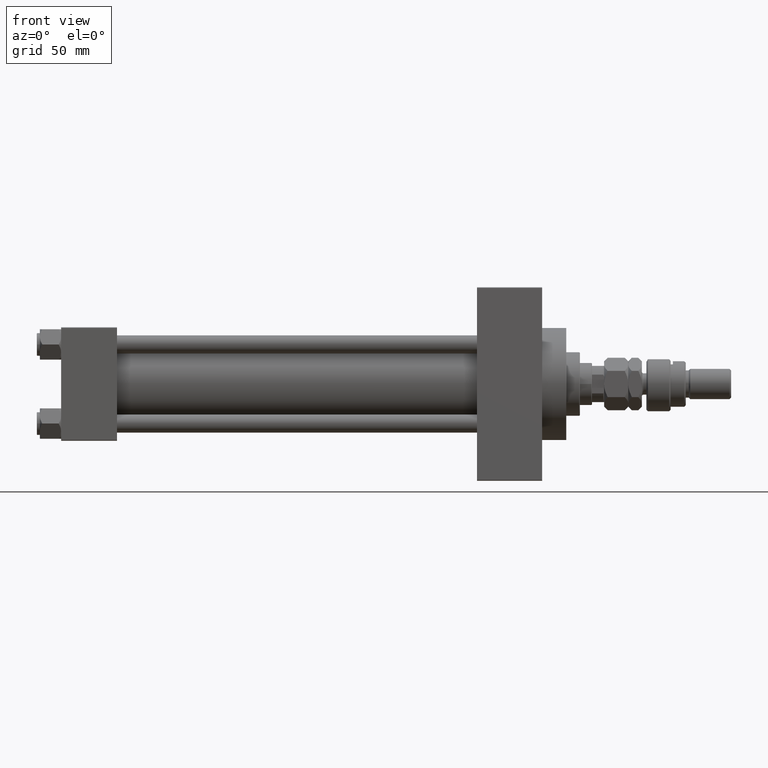
[diagram: clean part render]
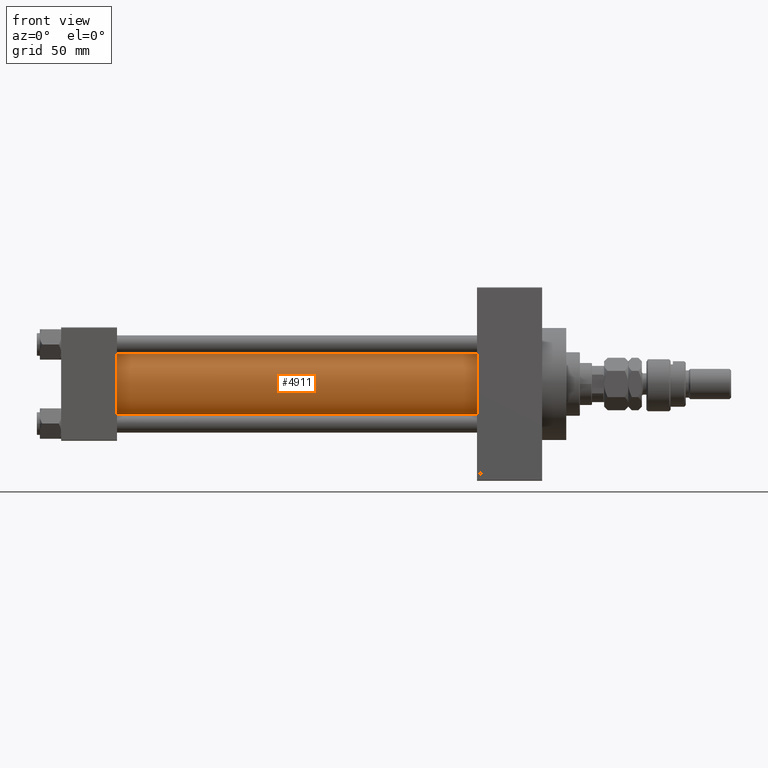
[diagram: same view with one face highlighted and labeled with its STEP entity id]
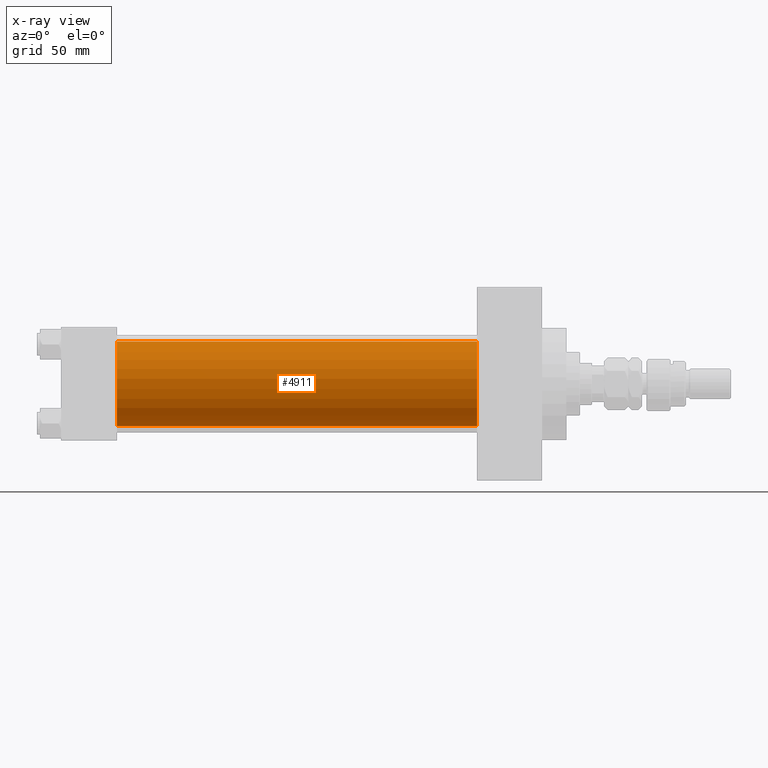
[diagram: x-ray of the same camera — body ghosted, the highlighted face saturated]
A machine part, front view. The second image highlights one B-rep face of the part: STEP entity #4911.
The next image is the same camera in x-ray: the body ghosted, the highlighted face saturated — about 0% of this face is hidden behind the body in this view.
In plain terms, the highlighted cylindrical surface (partial cylindrical patch) has radius 28 mm, axis along (-1, -0, -0).
Its self-contained STEP definition (entity closure, byte-faithful):
#641 = CIRCLE ( 'NONE', #30203, 28.00000000000000000 ) ;
#1534 = DIRECTION ( 'NONE',  ( 0.000000000000000000, 0.000000000000000000, 1.000000000000000000 ) ) ;
#1748 = CARTESIAN_POINT ( 'NONE',  ( 274.9999999999999432, -2.602085213965210642E-15, 28.00000000000000000 ) ) ;
#1933 = CARTESIAN_POINT ( 'NONE',  ( 274.9999999999999432, 8.269258236473784371E-16, -28.00000000000000000 ) ) ;
#2325 = DIRECTION ( 'NONE',  ( 0.000000000000000000, 0.000000000000000000, 1.000000000000000000 ) ) ;
#2907 = EDGE_CURVE ( 'NONE', #43489, #46385, #26801, .T. ) ;
#4911 = ADVANCED_FACE ( 'NONE', ( #17420 ), #33056, .T. ) ;
#7761 = VERTEX_POINT ( 'NONE', #34439 ) ;
#9689 = DIRECTION ( 'NONE',  ( -1.000000000000000000, -0.000000000000000000, -0.000000000000000000 ) ) ;
#10911 = VECTOR ( 'NONE', #9689, 1000.000000000000000 ) ;
#12428 = AXIS2_PLACEMENT_3D ( 'NONE', #39579, #49359, #41400 ) ;
#13598 = DIRECTION ( 'NONE',  ( -1.000000000000000000, -0.000000000000000000, -0.000000000000000000 ) ) ;
#14103 = LINE ( 'NONE', #1933, #41866 ) ;
#16655 = ORIENTED_EDGE ( 'NONE', *, *, #50864, .T. ) ;
#17420 = FACE_OUTER_BOUND ( 'NONE', #33377, .T. ) ;
#19854 = CARTESIAN_POINT ( 'NONE',  ( 274.9999999999999432, 8.269258236473784371E-16, -28.00000000000000000 ) ) ;
#23195 = CARTESIAN_POINT ( 'NONE',  ( 274.9999999999999432, -2.602085213965210642E-15, 28.00000000000000000 ) ) ;
#25570 = LINE ( 'NONE', #1748, #10911 ) ;
#26415 = DIRECTION ( 'NONE',  ( 1.000000000000000000, -0.000000000000000000, 0.000000000000000000 ) ) ;
#26801 = CIRCLE ( 'NONE', #12428, 28.00000000000000000 ) ;
#30092 = CARTESIAN_POINT ( 'NONE',  ( 274.9999999999999432, -2.602085213965210642E-15, 0.000000000000000000 ) ) ;
#30203 = AXIS2_PLACEMENT_3D ( 'NONE', #38830, #26415, #2325 ) ;
#33056 = CYLINDRICAL_SURFACE ( 'NONE', #37011, 28.00000000000000000 ) ;
#33377 = EDGE_LOOP ( 'NONE', ( #41153, #41746, #16655, #42527 ) ) ;
#34439 = CARTESIAN_POINT ( 'NONE',  ( 37.00000000000000711, -2.602085213965210642E-15, 28.00000000000000000 ) ) ;
#34461 = VERTEX_POINT ( 'NONE', #47151 ) ;
#37011 = AXIS2_PLACEMENT_3D ( 'NONE', #30092, #45978, #1534 ) ;
#38830 = CARTESIAN_POINT ( 'NONE',  ( 37.00000000000000711, -2.602085213965210642E-15, 0.000000000000000000 ) ) ;
#39579 = CARTESIAN_POINT ( 'NONE',  ( 274.9999999999999432, -2.602085213965210642E-15, 0.000000000000000000 ) ) ;
#41153 = ORIENTED_EDGE ( 'NONE', *, *, #41235, .F. ) ;
#41235 = EDGE_CURVE ( 'NONE', #46385, #34461, #14103, .T. ) ;
#41400 = DIRECTION ( 'NONE',  ( 0.000000000000000000, 0.000000000000000000, -1.000000000000000000 ) ) ;
#41746 = ORIENTED_EDGE ( 'NONE', *, *, #2907, .F. ) ;
#41866 = VECTOR ( 'NONE', #13598, 1000.000000000000000 ) ;
#42527 = ORIENTED_EDGE ( 'NONE', *, *, #45409, .T. ) ;
#43489 = VERTEX_POINT ( 'NONE', #23195 ) ;
#45409 = EDGE_CURVE ( 'NONE', #7761, #34461, #641, .T. ) ;
#45978 = DIRECTION ( 'NONE',  ( -1.000000000000000000, -0.000000000000000000, -0.000000000000000000 ) ) ;
#46385 = VERTEX_POINT ( 'NONE', #19854 ) ;
#47151 = CARTESIAN_POINT ( 'NONE',  ( 37.00000000000000711, 8.269258236473784371E-16, -28.00000000000000000 ) ) ;
#49359 = DIRECTION ( 'NONE',  ( 1.000000000000000000, 0.000000000000000000, 0.000000000000000000 ) ) ;
#50864 = EDGE_CURVE ( 'NONE', #43489, #7761, #25570, .T. ) ;